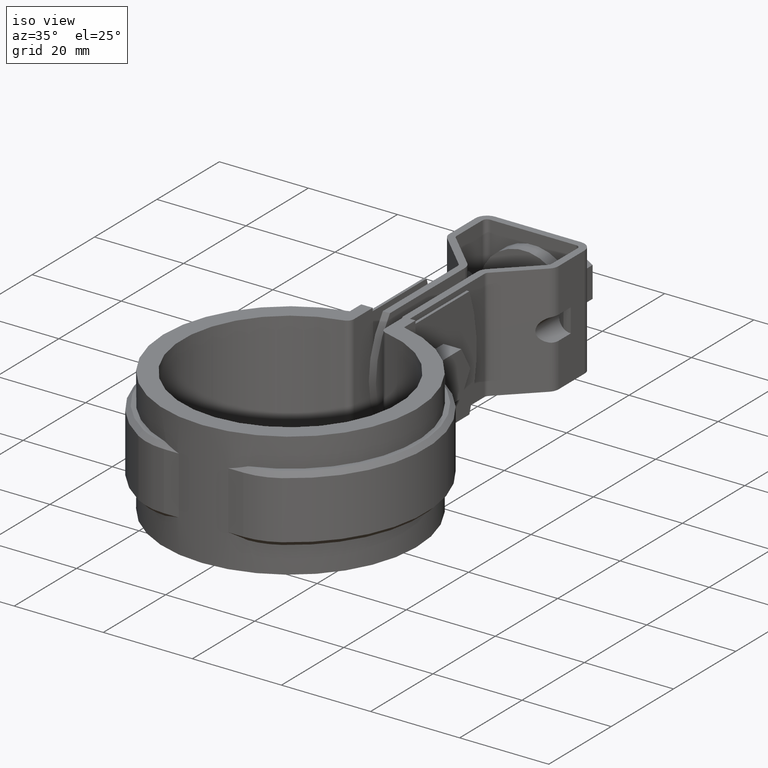
[diagram: clean part render]
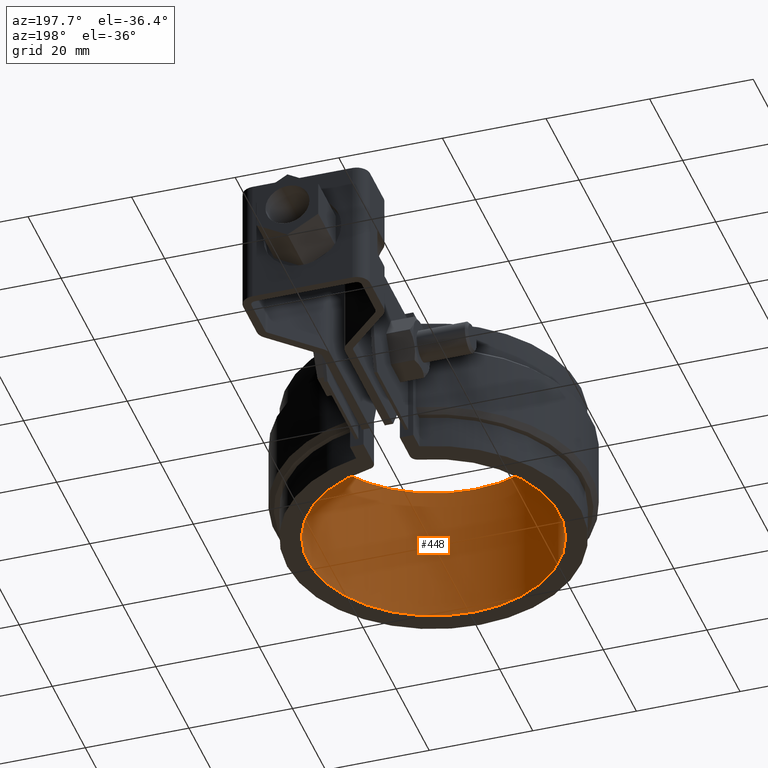
[diagram: tour spotlight — one face highlighted and labeled with its STEP entity id]
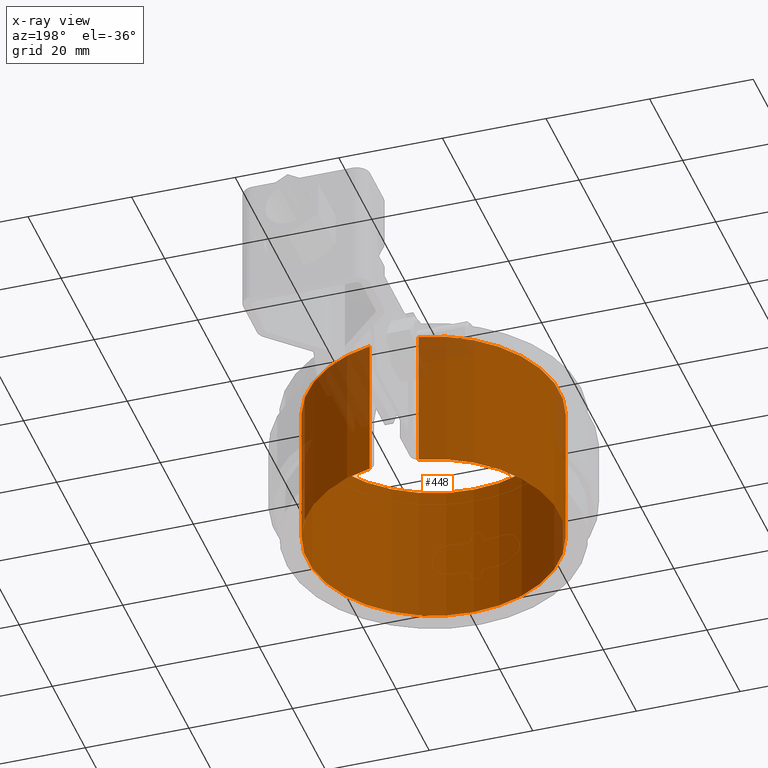
[diagram: x-ray of the same camera — body ghosted, this tour face saturated]
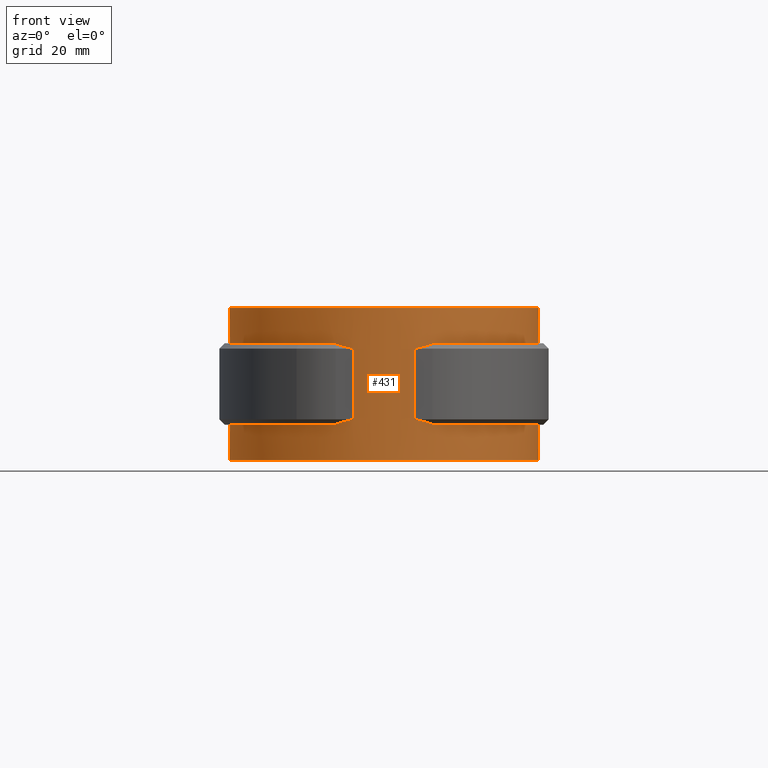
[diagram: tour spotlight — one face highlighted and labeled with its STEP entity id]
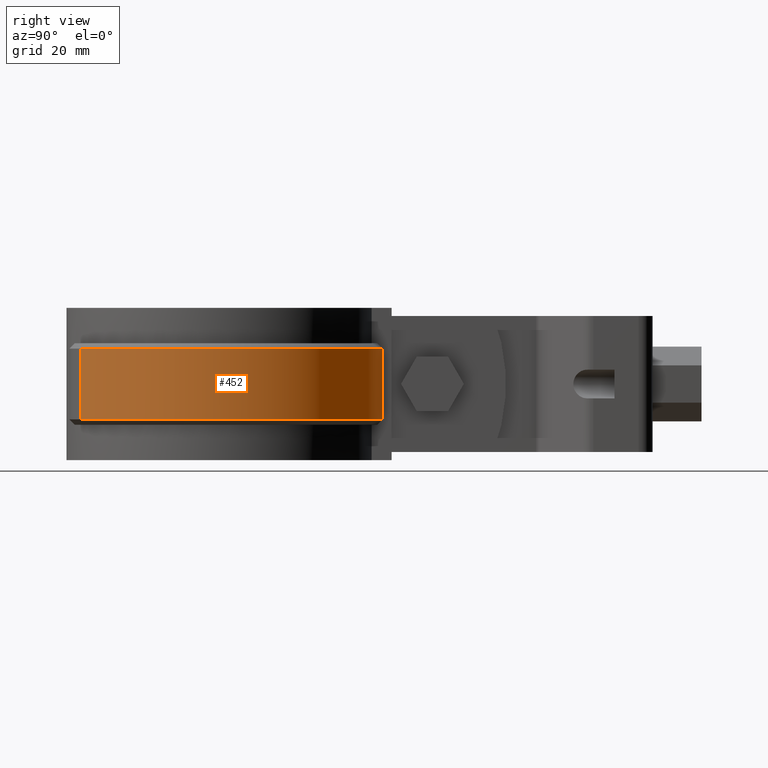
[diagram: tour spotlight — one face highlighted and labeled with its STEP entity id]
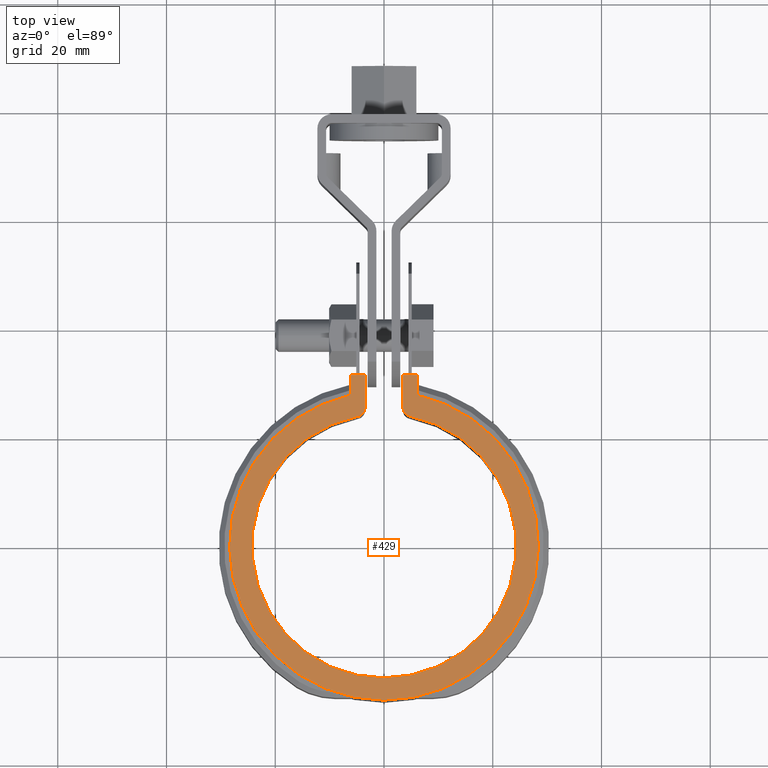
[diagram: tour spotlight — one face highlighted and labeled with its STEP entity id]
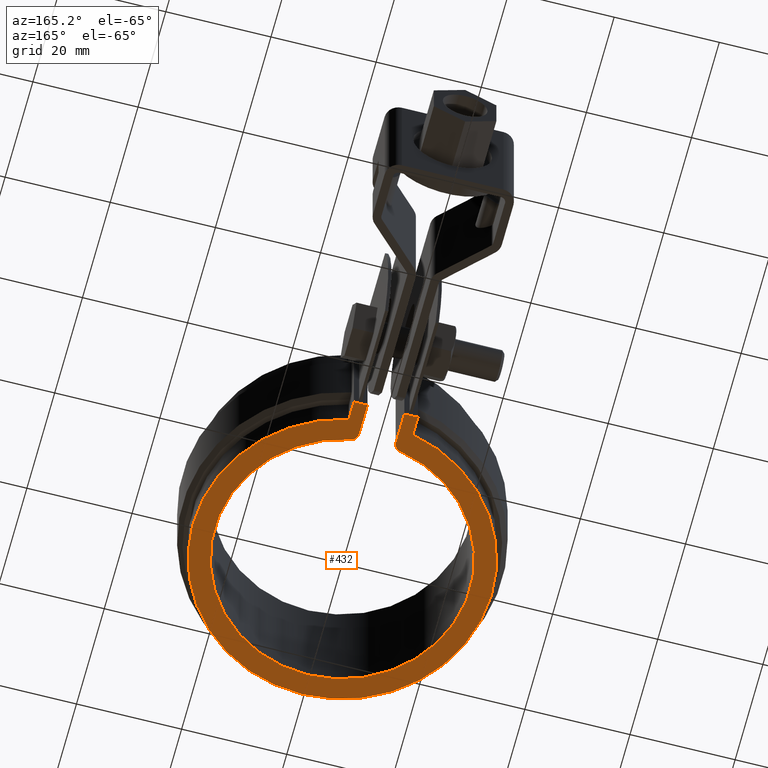
[diagram: tour spotlight — one face highlighted and labeled with its STEP entity id]
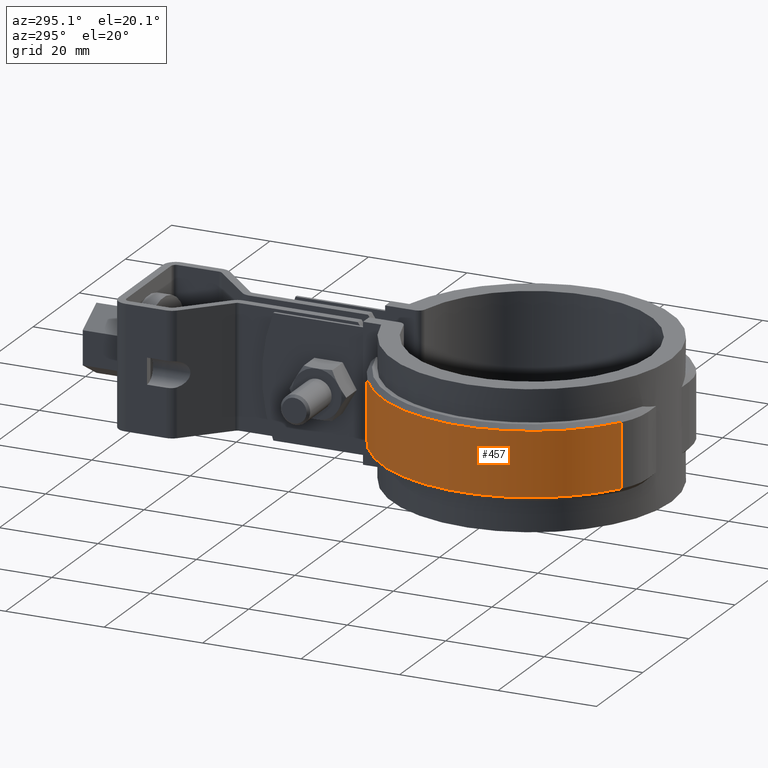
[diagram: tour spotlight — one face highlighted and labeled with its STEP entity id]
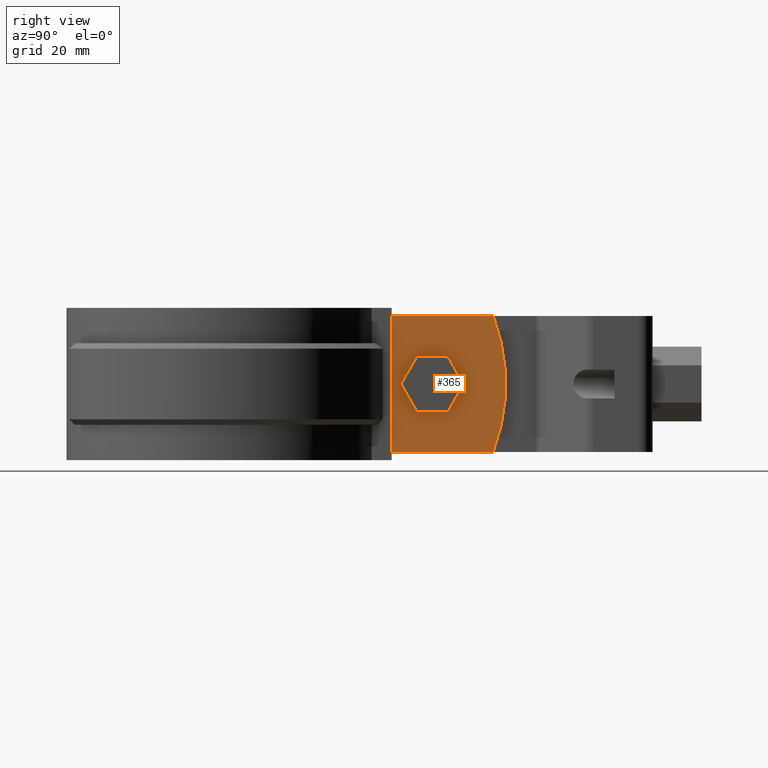
[diagram: tour spotlight — one face highlighted and labeled with its STEP entity id]
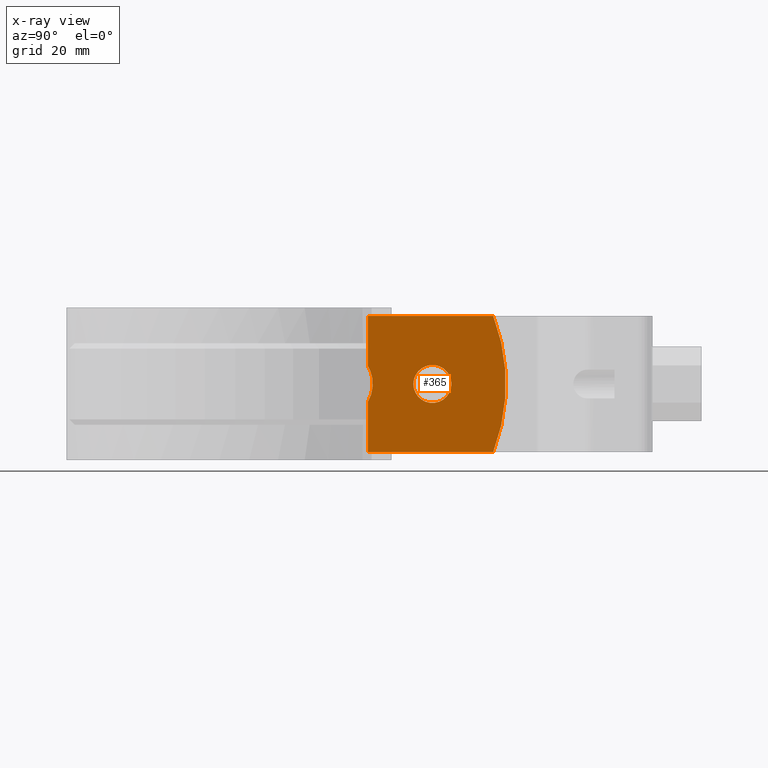
[diagram: x-ray of the same camera — body ghosted, this tour face saturated]
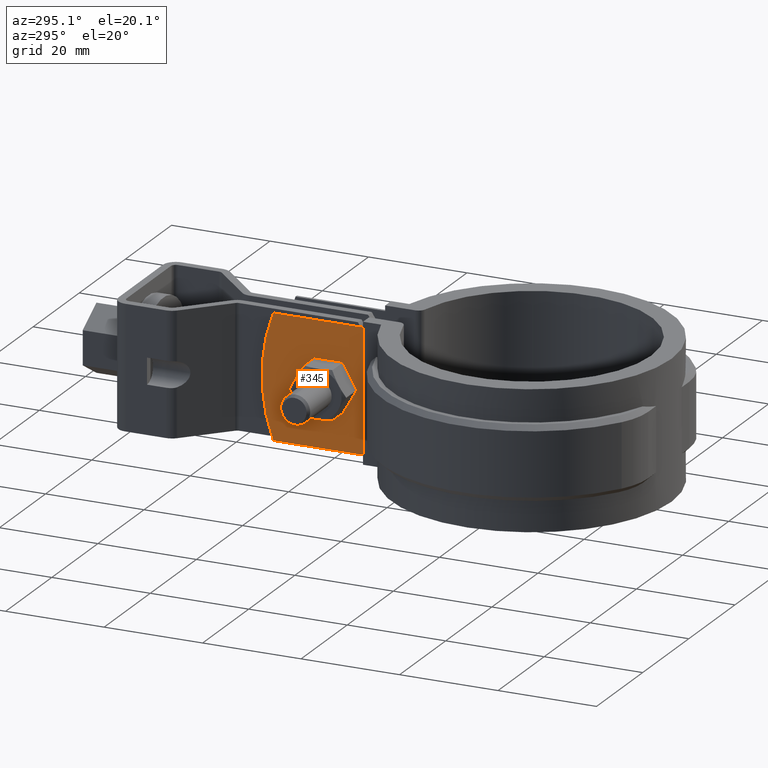
[diagram: tour spotlight — one face highlighted and labeled with its STEP entity id]
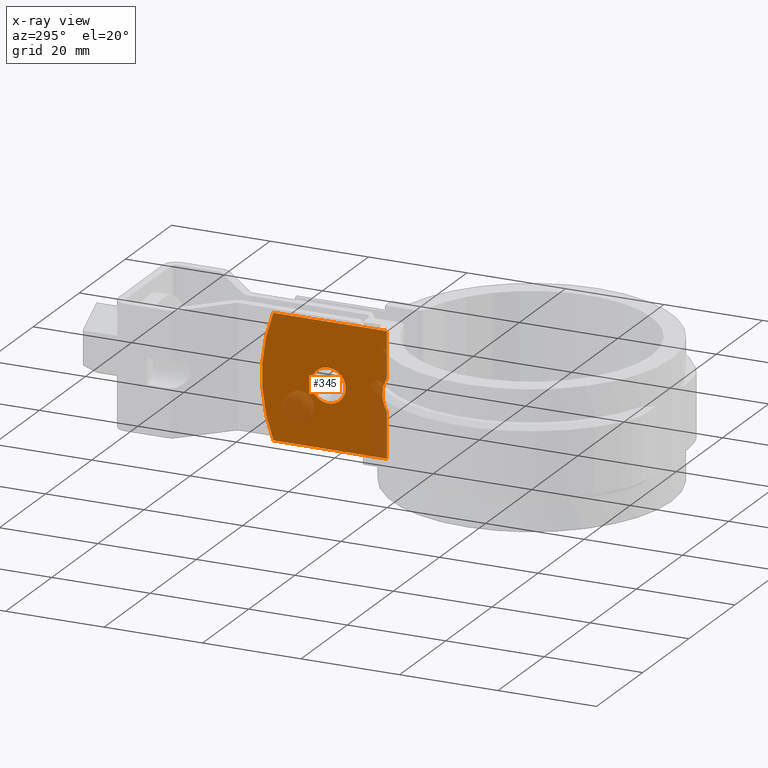
[diagram: x-ray of the same camera — body ghosted, this tour face saturated]
A machine part: a face-by-face anatomy tour. The part has 237 B-rep faces; the first image is the clean iso view, then the 8 largest visible faces are spotlighted one at a time (largest first), each with its STEP entity span.

Face 1 — auxiliary view, entity #448. An x-ray twin of the same camera follows (body ghosted, this face saturated) — the face is partly hidden behind the body. In plain terms, the highlighted cylindrical surface (partial cylindrical patch) has radius 24.3 mm, axis along (0, 0, -1).
Definition (entity closure, byte-faithful):
#448 = ADVANCED_FACE( '', ( #827 ), #828, .F. );
#827 = FACE_OUTER_BOUND( '', #1960, .T. );
#828 = CYLINDRICAL_SURFACE( '', #1961, 24.3000000000000 );
#1960 = EDGE_LOOP( '', ( #4609, #4610, #4611, #4612 ) );
#1961 = AXIS2_PLACEMENT_3D( '', #4613, #4614, #4615 );
#4609 = ORIENTED_EDGE( '', *, *, #5888, .F. );
#4610 = ORIENTED_EDGE( '', *, *, #5916, .T. );
#4611 = ORIENTED_EDGE( '', *, *, #5859, .T. );
#4612 = ORIENTED_EDGE( '', *, *, #5917, .T. );
#4613 = CARTESIAN_POINT( '', ( 0.000000000000000, 0.000000000000000, -96.6314213318892 ) );
#4614 = DIRECTION( '', ( 0.000000000000000, 0.000000000000000, -1.00000000000000 ) );
#4615 = DIRECTION( '', ( -1.00000000000000, 0.000000000000000, 0.000000000000000 ) );
#5859 = EDGE_CURVE( '', #6764, #6762, #6765, .F. );
#5888 = EDGE_CURVE( '', #6815, #6817, #6818, .F. );
#5916 = EDGE_CURVE( '', #6815, #6764, #6858, .T. );
#5917 = EDGE_CURVE( '', #6762, #6817, #6859, .F. );
#6762 = VERTEX_POINT( '', #10327 );
#6764 = VERTEX_POINT( '', #10329 );
#6765 = CIRCLE( '', #10330, 24.3000000000000 );
#6815 = VERTEX_POINT( '', #10409 );
#6817 = VERTEX_POINT( '', #10411 );
#6818 = CIRCLE( '', #10412, 24.3000000000000 );
#6858 = LINE( '', #10470, #10471 );
#6859 = LINE( '', #10472, #10473 );
#10327 = CARTESIAN_POINT( '', ( 4.70930232558140, 23.8393051829594, 1.50000000000000 ) );
#10329 = CARTESIAN_POINT( '', ( -4.70930232558140, 23.8393051829594, 1.50000000000000 ) );
#10330 = AXIS2_PLACEMENT_3D( '', #11458, #11459, #11460 );
#10409 = CARTESIAN_POINT( '', ( -4.70930232558140, 23.8393051829594, -26.5000000000000 ) );
#10411 = CARTESIAN_POINT( '', ( 4.70930232558140, 23.8393051829594, -26.5000000000000 ) );
#10412 = AXIS2_PLACEMENT_3D( '', #11505, #11506, #11507 );
#10470 = CARTESIAN_POINT( '', ( -4.70930232558140, 23.8393051829594, -96.6314213318892 ) );
#10471 = VECTOR( '', #11553, 1000.00000000000 );
#10472 = CARTESIAN_POINT( '', ( 4.70930232558140, 23.8393051829594, -96.6314213318892 ) );
#10473 = VECTOR( '', #11554, 1000.00000000000 );
#11458 = CARTESIAN_POINT( '', ( 0.000000000000000, 0.000000000000000, 1.50000000000000 ) );
#11459 = DIRECTION( '', ( 0.000000000000000, 0.000000000000000, -1.00000000000000 ) );
#11460 = DIRECTION( '', ( -1.00000000000000, 0.000000000000000, 0.000000000000000 ) );
#11505 = CARTESIAN_POINT( '', ( 0.000000000000000, 0.000000000000000, -26.5000000000000 ) );
#11506 = DIRECTION( '', ( 0.000000000000000, 0.000000000000000, -1.00000000000000 ) );
#11507 = DIRECTION( '', ( -1.00000000000000, 0.000000000000000, 0.000000000000000 ) );
#11553 = DIRECTION( '', ( 0.000000000000000, 0.000000000000000, 1.00000000000000 ) );
#11554 = DIRECTION( '', ( 0.000000000000000, 0.000000000000000, 1.00000000000000 ) );

Face 2 — front view, entity #431. In plain terms, the highlighted cylindrical surface (partial cylindrical patch) has radius 28.395 mm, axis along (0, 0, -1).
Definition (entity closure, byte-faithful):
#431 = ADVANCED_FACE( '', ( #792 ), #793, .T. );
#792 = FACE_OUTER_BOUND( '', #1925, .T. );
#793 = CYLINDRICAL_SURFACE( '', #1926, 28.3950000000000 );
#1925 = EDGE_LOOP( '', ( #4464, #4465, #4466, #4467, #4468, #4469, #4470, #4471, #4472, #4473, #4474, #4475, #4476, #4477, #4478, #4479, #4480, #4481, #4482, #4483 ) );
#1926 = AXIS2_PLACEMENT_3D( '', #4484, #4485, #4486 );
#4464 = ORIENTED_EDGE( '', *, *, #5871, .F. );
#4465 = ORIENTED_EDGE( '', *, *, #5872, .T. );
#4466 = ORIENTED_EDGE( '', *, *, #5873, .T. );
#4467 = ORIENTED_EDGE( '', *, *, #5874, .F. );
#4468 = ORIENTED_EDGE( '', *, *, #5875, .T. );
#4469 = ORIENTED_EDGE( '', *, *, #5876, .T. );
#4470 = ORIENTED_EDGE( '', *, *, #5877, .T. );
#4471 = ORIENTED_EDGE( '', *, *, #5848, .F. );
#4472 = ORIENTED_EDGE( '', *, *, #5878, .T. );
#4473 = ORIENTED_EDGE( '', *, *, #5870, .T. );
#4474 = ORIENTED_EDGE( '', *, *, #5879, .F. );
#4475 = ORIENTED_EDGE( '', *, *, #5880, .T. );
#4476 = ORIENTED_EDGE( '', *, *, #5881, .T. );
#4477 = ORIENTED_EDGE( '', *, *, #5882, .T. );
#4478 = ORIENTED_EDGE( '', *, *, #5883, .T. );
#4479 = ORIENTED_EDGE( '', *, *, #5884, .T. );
#4480 = ORIENTED_EDGE( '', *, *, #5885, .T. );
#4481 = ORIENTED_EDGE( '', *, *, #5864, .T. );
#4482 = ORIENTED_EDGE( '', *, *, #5855, .F. );
#4483 = ORIENTED_EDGE( '', *, *, #5854, .F. );
#4484 = CARTESIAN_POINT( '', ( -4.33680868994202E-015, 0.000000000000000, -26.5000000000000 ) );
#4485 = DIRECTION( '', ( 0.000000000000000, 0.000000000000000, -1.00000000000000 ) );
#4486 = DIRECTION( '', ( -1.00000000000000, 6.50521303491303E-017, 0.000000000000000 ) );
#5848 = EDGE_CURVE( '', #6742, #6744, #6745, .T. );
#5854 = EDGE_CURVE( '', #6754, #6740, #6756, .T. );
#5855 = EDGE_CURVE( '', #6740, #6757, #6758, .T. );
#5864 = EDGE_CURVE( '', #6773, #6757, #6774, .T. );
#5870 = EDGE_CURVE( '', #6769, #6783, #6785, .T. );
#5871 = EDGE_CURVE( '', #6786, #6754, #6787, .T. );
#5872 = EDGE_CURVE( '', #6786, #6788, #6789, .F. );
#5873 = EDGE_CURVE( '', #6788, #6790, #6791, .T. );
#5874 = EDGE_CURVE( '', #6792, #6790, #6793, .T. );
#5875 = EDGE_CURVE( '', #6792, #6794, #6795, .F. );
#5876 = EDGE_CURVE( '', #6794, #6796, #6797, .T. );
#5877 = EDGE_CURVE( '', #6796, #6744, #6798, .T. );
#5878 = EDGE_CURVE( '', #6742, #6769, #6799, .T. );
#5879 = EDGE_CURVE( '', #6800, #6783, #6801, .T. );
#5880 = EDGE_CURVE( '', #6800, #6802, #6803, .F. );
#5881 = EDGE_CURVE( '', #6802, #6804, #6805, .F. );
#5882 = EDGE_CURVE( '', #6804, #6806, #6807, .T. );
#5883 = EDGE_CURVE( '', #6806, #6808, #6809, .T. );
#5884 = EDGE_CURVE( '', #6808, #6810, #6811, .T. );
#5885 = EDGE_CURVE( '', #6810, #6773, #6812, .T. );
#6740 = VERTEX_POINT( '', #10290 );
#6742 = VERTEX_POINT( '', #10293 );
#6744 = VERTEX_POINT( '', #10296 );
#6745 = LINE( '', #10297, #10298 );
#6754 = VERTEX_POINT( '', #10315 );
#6756 = LINE( '', #10318, #10319 );
#6757 = VERTEX_POINT( '', #10320 );
#6758 = CIRCLE( '', #10321, 28.3950000000000 );
#6769 = VERTEX_POINT( '', #10335 );
#6773 = VERTEX_POINT( '', #10341 );
#6774 = LINE( '', #10342, #10343 );
#6783 = VERTEX_POINT( '', #10360 );
#6785 = LINE( '', #10363, #10364 );
#6786 = VERTEX_POINT( '', #10365 );
#6787 = CIRCLE( '', #10366, 28.3950000000000 );
#6788 = VERTEX_POINT( '', #10367 );
#6789 = B_SPLINE_CURVE_WITH_KNOTS( '', 3, ( #10368, #10369, #10370, #10371 ), .UNSPECIFIED., .F., .F., ( 4, 4 ), ( 0.00706671622431383, 0.00746585166887138 ), .UNSPECIFIED. );
#6790 = VERTEX_POINT( '', #10372 );
#6791 = ELLIPSE( '', #10373, 40.1565941035840, 28.3950000000000 );
#6792 = VERTEX_POINT( '', #10374 );
#6793 = LINE( '', #10375, #10376 );
#6794 = VERTEX_POINT( '', #10377 );
#6795 = ELLIPSE( '', #10378, 40.1565941035840, 28.3950000000000 );
#6796 = VERTEX_POINT( '', #10379 );
#6797 = B_SPLINE_CURVE_WITH_KNOTS( '', 3, ( #10380, #10381, #10382, #10383 ), .UNSPECIFIED., .F., .F., ( 4, 4 ), ( 0.00706671622431389, 0.00746585166887139 ), .UNSPECIFIED. );
#6798 = CIRCLE( '', #10384, 28.3950000000000 );
#6799 = CIRCLE( '', #10385, 28.3950000000000 );
#6800 = VERTEX_POINT( '', #10386 );
#6801 = CIRCLE( '', #10387, 28.3950000000000 );
#6802 = VERTEX_POINT( '', #10388 );
#6803 = B_SPLINE_CURVE_WITH_KNOTS( '', 3, ( #10389, #10390, #10391, #10392 ), .UNSPECIFIED., .F., .F., ( 4, 4 ), ( 0.00706671622431389, 0.00746585166887139 ), .UNSPECIFIED. );
#6804 = VERTEX_POINT( '', #10393 );
#6805 = ELLIPSE( '', #10394, 40.1565941035840, 28.3950000000000 );
#6806 = VERTEX_POINT( '', #10395 );
#6807 = LINE( '', #10396, #10397 );
#6808 = VERTEX_POINT( '', #10398 );
#6809 = ELLIPSE( '', #10399, 40.1565941035840, 28.3950000000000 );
#6810 = VERTEX_POINT( '', #10400 );
#6811 = B_SPLINE_CURVE_WITH_KNOTS( '', 3, ( #10401, #10402, #10403, #10404 ), .UNSPECIFIED., .F., .F., ( 4, 4 ), ( 0.00706671622431387, 0.00746585166887139 ), .UNSPECIFIED. );
#6812 = CIRCLE( '', #10405, 28.3950000000000 );
#10290 = CARTESIAN_POINT( '', ( -6.10000000000000, 27.7320396833698, 1.50000000000000 ) );
#10293 = CARTESIAN_POINT( '', ( -6.10000000000000, 27.7320396833698, -26.5000000000000 ) );
#10296 = CARTESIAN_POINT( '', ( -6.10000000000001, 27.7320396833699, -20.0000000000000 ) );
#10297 = CARTESIAN_POINT( '', ( -6.10000000000000, 27.7320396833698, -26.5000000000000 ) );
#10298 = VECTOR( '', #11445, 1000.00000000000 );
#10315 = CARTESIAN_POINT( '', ( -6.10000000000001, 27.7320396833699, -5.00000000000000 ) );
#10318 = CARTESIAN_POINT( '', ( -6.10000000000000, 27.7320396833698, -26.5000000000000 ) );
#10319 = VECTOR( '', #11449, 1000.00000000000 );
#10320 = CARTESIAN_POINT( '', ( 6.10000000000000, 27.7320396833698, 1.50000000000000 ) );
#10321 = AXIS2_PLACEMENT_3D( '', #11450, #11451, #11452 );
#10335 = CARTESIAN_POINT( '', ( 6.10000000000000, 27.7320396833698, -26.5000000000000 ) );
#10341 = CARTESIAN_POINT( '', ( 6.10000000000000, 27.7320396833699, -5.00000000000000 ) );
#10342 = CARTESIAN_POINT( '', ( 6.10000000000000, 27.7320396833698, -26.5000000000000 ) );
#10343 = VECTOR( '', #11467, 1000.00000000000 );
#10360 = CARTESIAN_POINT( '', ( 6.10000000000000, 27.7320396833698, -20.0000000000000 ) );
#10363 = CARTESIAN_POINT( '', ( 6.10000000000000, 27.7320396833698, -26.5000000000000 ) );
#10364 = VECTOR( '', #11471, 1000.00000000000 );
#10365 = CARTESIAN_POINT( '', ( -9.25408003531870, -26.8447020415559, -5.00000000000000 ) );
#10366 = AXIS2_PLACEMENT_3D( '', #11472, #11473, #11474 );
#10367 = CARTESIAN_POINT( '', ( -8.88873022427838, -26.9678790415561, -5.11787904155609 ) );
#10368 = CARTESIAN_POINT( '', ( -8.88873022427837, -26.9678790415561, -5.11787904155608 ) );
#10369 = CARTESIAN_POINT( '', ( -9.01038261567006, -26.9277818842471, -5.07778188424709 ) );
#10370 = CARTESIAN_POINT( '', ( -9.13216194667498, -26.8867304368912, -5.03847558459403 ) );
#10371 = CARTESIAN_POINT( '', ( -9.25408003531869, -26.8447020415559, -4.99999999999999 ) );
#10372 = CARTESIAN_POINT( '', ( -5.53656256173450, -27.8500000000000, -6.00000000000000 ) );
#10373 = AXIS2_PLACEMENT_3D( '', #11475, #11476, #11477 );
#10374 = CARTESIAN_POINT( '', ( -5.53656256173450, -27.8500000000000, -19.0000000000000 ) );
#10375 = CARTESIAN_POINT( '', ( -5.53656256173450, -27.8500000000000, -20.0000000000000 ) );
#10376 = VECTOR( '', #11478, 1000.00000000000 );
#10377 = CARTESIAN_POINT( '', ( -8.88873022427840, -26.9678790415561, -19.8821209584439 ) );
#10378 = AXIS2_PLACEMENT_3D( '', #11479, #11480, #11481 );
#10379 = CARTESIAN_POINT( '', ( -9.25408003531866, -26.8447020415559, -20.0000000000000 ) );
#10380 = CARTESIAN_POINT( '', ( -8.88873022427839, -26.9678790415561, -19.8821209584439 ) );
#10381 = CARTESIAN_POINT( '', ( -9.01038261567007, -26.9277818842471, -19.9222181157529 ) );
#10382 = CARTESIAN_POINT( '', ( -9.13216194667496, -26.8867304368912, -19.9615244154060 ) );
#10383 = CARTESIAN_POINT( '', ( -9.25408003531865, -26.8447020415559, -20.0000000000000 ) );
#10384 = AXIS2_PLACEMENT_3D( '', #11482, #11483, #11484 );
#10385 = AXIS2_PLACEMENT_3D( '', #11485, #11486, #11487 );
#10386 = CARTESIAN_POINT( '', ( 9.25408003531866, -26.8447020415559, -20.0000000000000 ) );
#10387 = AXIS2_PLACEMENT_3D( '', #11488, #11489, #11490 );
#10388 = CARTESIAN_POINT( '', ( 8.88873022427839, -26.9678790415561, -19.8821209584439 ) );
#10389 = CARTESIAN_POINT( '', ( 8.88873022427839, -26.9678790415561, -19.8821209584439 ) );
#10390 = CARTESIAN_POINT( '', ( 9.01038261567006, -26.9277818842471, -19.9222181157529 ) );
#10391 = CARTESIAN_POINT( '', ( 9.13216194667496, -26.8867304368912, -19.9615244154060 ) );
#10392 = CARTESIAN_POINT( '', ( 9.25408003531865, -26.8447020415559, -20.0000000000000 ) );
#10393 = CARTESIAN_POINT( '', ( 5.53656256173448, -27.8500000000000, -19.0000000000000 ) );
#10394 = AXIS2_PLACEMENT_3D( '', #11491, #11492, #11493 );
#10395 = CARTESIAN_POINT( '', ( 5.53656256173448, -27.8500000000000, -6.00000000000000 ) );
#10396 = CARTESIAN_POINT( '', ( 5.53656256173448, -27.8500000000000, -20.0000000000000 ) );
#10397 = VECTOR( '', #11494, 1000.00000000000 );
#10398 = CARTESIAN_POINT( '', ( 8.88873022427838, -26.9678790415561, -5.11787904155608 ) );
#10399 = AXIS2_PLACEMENT_3D( '', #11495, #11496, #11497 );
#10400 = CARTESIAN_POINT( '', ( 9.25408003531866, -26.8447020415559, -5.00000000000000 ) );
#10401 = CARTESIAN_POINT( '', ( 8.88873022427837, -26.9678790415561, -5.11787904155608 ) );
#10402 = CARTESIAN_POINT( '', ( 9.01038261567005, -26.9277818842471, -5.07778188424709 ) );
#10403 = CARTESIAN_POINT( '', ( 9.13216194667495, -26.8867304368912, -5.03847558459404 ) );
#10404 = CARTESIAN_POINT( '', ( 9.25408003531865, -26.8447020415559, -4.99999999999999 ) );
#10405 = AXIS2_PLACEMENT_3D( '', #11498, #11499, #11500 );
#11445 = DIRECTION( '', ( 0.000000000000000, 0.000000000000000, 1.00000000000000 ) );
#11449 = DIRECTION( '', ( 0.000000000000000, 0.000000000000000, 1.00000000000000 ) );
#11450 = CARTESIAN_POINT( '', ( -4.33680868994202E-015, 0.000000000000000, 1.50000000000000 ) );
#11451 = DIRECTION( '', ( 0.000000000000000, 0.000000000000000, 1.00000000000000 ) );
#11452 = DIRECTION( '', ( 1.00000000000000, -6.50521303491303E-017, 0.000000000000000 ) );
#11467 = DIRECTION( '', ( 0.000000000000000, 0.000000000000000, 1.00000000000000 ) );
#11471 = DIRECTION( '', ( 0.000000000000000, 0.000000000000000, 1.00000000000000 ) );
#11472 = CARTESIAN_POINT( '', ( -8.67361737988404E-016, -3.46944695195361E-015, -5.00000000000000 ) );
#11473 = DIRECTION( '', ( 0.000000000000000, 0.000000000000000, -1.00000000000000 ) );
#11474 = DIRECTION( '', ( 1.00000000000000, 5.55111512312578E-017, 0.000000000000000 ) );
#11475 = CARTESIAN_POINT( '', ( -4.33680868994202E-015, 0.000000000000000, 21.8500000000000 ) );
#11476 = DIRECTION( '', ( 0.000000000000000, -0.707106781186548, 0.707106781186547 ) );
#11477 = DIRECTION( '', ( 0.000000000000000, 0.707106781186547, 0.707106781186548 ) );
#11478 = DIRECTION( '', ( 0.000000000000000, 0.000000000000000, 1.00000000000000 ) );
#11479 = CARTESIAN_POINT( '', ( -4.33680868994202E-015, 0.000000000000000, -46.8500000000000 ) );
#11480 = DIRECTION( '', ( 0.000000000000000, 0.707106781186548, 0.707106781186548 ) );
#11481 = DIRECTION( '', ( 0.000000000000000, -0.707106781186548, 0.707106781186548 ) );
#11482 = CARTESIAN_POINT( '', ( -8.67361737988404E-016, -3.46944695195361E-015, -20.0000000000000 ) );
#11483 = DIRECTION( '', ( 0.000000000000000, 0.000000000000000, -1.00000000000000 ) );
#11484 = DIRECTION( '', ( 1.00000000000000, 5.55111512312578E-017, 0.000000000000000 ) );
#11485 = CARTESIAN_POINT( '', ( -4.33680868994202E-015, 0.000000000000000, -26.5000000000000 ) );
#11486 = DIRECTION( '', ( 0.000000000000000, 0.000000000000000, 1.00000000000000 ) );
#11487 = DIRECTION( '', ( 1.00000000000000, -6.50521303491303E-017, 0.000000000000000 ) );
#11488 = CARTESIAN_POINT( '', ( -8.67361737988404E-016, -3.46944695195361E-015, -20.0000000000000 ) );
#11489 = DIRECTION( '', ( 0.000000000000000, 0.000000000000000, 1.00000000000000 ) );
#11490 = DIRECTION( '', ( 1.00000000000000, 5.55111512312578E-017, 0.000000000000000 ) );
#11491 = CARTESIAN_POINT( '', ( -4.33680868994202E-015, 0.000000000000000, -46.8500000000000 ) );
#11492 = DIRECTION( '', ( 0.000000000000000, 0.707106781186548, 0.707106781186548 ) );
#11493 = DIRECTION( '', ( 0.000000000000000, -0.707106781186548, 0.707106781186548 ) );
#11494 = DIRECTION( '', ( 0.000000000000000, 0.000000000000000, 1.00000000000000 ) );
#11495 = CARTESIAN_POINT( '', ( -4.33680868994202E-015, 0.000000000000000, 21.8500000000000 ) );
#11496 = DIRECTION( '', ( 0.000000000000000, -0.707106781186548, 0.707106781186547 ) );
#11497 = DIRECTION( '', ( 0.000000000000000, 0.707106781186547, 0.707106781186548 ) );
#11498 = CARTESIAN_POINT( '', ( -8.67361737988404E-016, -3.46944695195361E-015, -5.00000000000000 ) );
#11499 = DIRECTION( '', ( 0.000000000000000, 0.000000000000000, 1.00000000000000 ) );
#11500 = DIRECTION( '', ( 1.00000000000000, 5.55111512312578E-017, 0.000000000000000 ) );

Face 3 — right view, entity #452. In plain terms, the highlighted cylindrical surface (partial cylindrical patch) has radius 30.395 mm, axis along (0, 0, -1).
Definition (entity closure, byte-faithful):
#452 = ADVANCED_FACE( '', ( #835 ), #836, .T. );
#835 = FACE_OUTER_BOUND( '', #1968, .T. );
#836 = CYLINDRICAL_SURFACE( '', #1969, 30.3950000000000 );
#1968 = EDGE_LOOP( '', ( #4637, #4638, #4639, #4640 ) );
#1969 = AXIS2_PLACEMENT_3D( '', #4641, #4642, #4643 );
#4637 = ORIENTED_EDGE( '', *, *, #5867, .T. );
#4638 = ORIENTED_EDGE( '', *, *, #5920, .T. );
#4639 = ORIENTED_EDGE( '', *, *, #5892, .F. );
#4640 = ORIENTED_EDGE( '', *, *, #5919, .T. );
#4641 = CARTESIAN_POINT( '', ( -8.67361737988404E-016, -3.46944695195361E-015, -20.0000000000000 ) );
#4642 = DIRECTION( '', ( 0.000000000000000, 0.000000000000000, -1.00000000000000 ) );
#4643 = DIRECTION( '', ( 0.194983714095246, 0.980806480014087, 0.000000000000000 ) );
#5867 = EDGE_CURVE( '', #6779, #6777, #6780, .T. );
#5892 = EDGE_CURVE( '', #6822, #6823, #6824, .T. );
#5919 = EDGE_CURVE( '', #6822, #6779, #6861, .T. );
#5920 = EDGE_CURVE( '', #6777, #6823, #6862, .F. );
#6777 = VERTEX_POINT( '', #10347 );
#6779 = VERTEX_POINT( '', #10352 );
#6780 = LINE( '', #10353, #10354 );
#6822 = VERTEX_POINT( '', #10418 );
#6823 = VERTEX_POINT( '', #10419 );
#6824 = LINE( '', #10420, #10421 );
#6861 = CIRCLE( '', #10475, 30.3950000000000 );
#6862 = CIRCLE( '', #10476, 30.3950000000000 );
#10347 = CARTESIAN_POINT( '', ( 6.10000000000001, 29.7766019720183, -6.00000000000000 ) );
#10352 = CARTESIAN_POINT( '', ( 6.10000000000001, 29.7766019720183, -19.0000000000000 ) );
#10353 = CARTESIAN_POINT( '', ( 6.10000000000001, 29.7766019720183, -20.0000000000000 ) );
#10354 = VECTOR( '', #11469, 1000.00000000000 );
#10418 = CARTESIAN_POINT( '', ( 16.0865111739769, -25.7891485561179, -19.0000000000000 ) );
#10419 = CARTESIAN_POINT( '', ( 16.0865111739769, -25.7891485561179, -6.00000000000000 ) );
#10420 = CARTESIAN_POINT( '', ( 16.0865111739769, -25.7891485561179, -20.0000000000000 ) );
#10421 = VECTOR( '', #11513, 1000.00000000000 );
#10475 = AXIS2_PLACEMENT_3D( '', #11558, #11559, #11560 );
#10476 = AXIS2_PLACEMENT_3D( '', #11561, #11562, #11563 );
#11469 = DIRECTION( '', ( 0.000000000000000, 0.000000000000000, 1.00000000000000 ) );
#11513 = DIRECTION( '', ( 0.000000000000000, 0.000000000000000, 1.00000000000000 ) );
#11558 = CARTESIAN_POINT( '', ( -8.67361737988404E-016, -3.46944695195361E-015, -19.0000000000000 ) );
#11559 = DIRECTION( '', ( 0.000000000000000, 0.000000000000000, 1.00000000000000 ) );
#11560 = DIRECTION( '', ( 1.00000000000000, 0.000000000000000, 0.000000000000000 ) );
#11561 = CARTESIAN_POINT( '', ( -8.67361737988404E-016, -3.46944695195361E-015, -6.00000000000000 ) );
#11562 = DIRECTION( '', ( 0.000000000000000, 0.000000000000000, 1.00000000000000 ) );
#11563 = DIRECTION( '', ( 1.00000000000000, 0.000000000000000, 0.000000000000000 ) );

Face 4 — top view, entity #429. In plain terms, the highlighted planar face has unit normal (0, 0, -1).
Definition (entity closure, byte-faithful):
#429 = ADVANCED_FACE( '', ( #788 ), #789, .F. );
#788 = FACE_OUTER_BOUND( '', #1921, .T. );
#789 = PLANE( '', #1922 );
#1921 = EDGE_LOOP( '', ( #4438, #4439, #4440, #4441, #4442, #4443, #4444, #4445, #4446, #4447 ) );
#1922 = AXIS2_PLACEMENT_3D( '', #4448, #4449, #4450 );
#4438 = ORIENTED_EDGE( '', *, *, #5671, .F. );
#4439 = ORIENTED_EDGE( '', *, *, #5846, .T. );
#4440 = ORIENTED_EDGE( '', *, *, #5855, .T. );
#4441 = ORIENTED_EDGE( '', *, *, #5856, .T. );
#4442 = ORIENTED_EDGE( '', *, *, #5857, .F. );
#4443 = ORIENTED_EDGE( '', *, *, #5664, .T. );
#4444 = ORIENTED_EDGE( '', *, *, #5858, .T. );
#4445 = ORIENTED_EDGE( '', *, *, #5859, .F. );
#4446 = ORIENTED_EDGE( '', *, *, #5860, .T. );
#4447 = ORIENTED_EDGE( '', *, *, #5861, .T. );
#4448 = CARTESIAN_POINT( '', ( -6.50000000000000, 27.0294284068310, 1.50000000000000 ) );
#4449 = DIRECTION( '', ( 0.000000000000000, 0.000000000000000, -1.00000000000000 ) );
#4450 = DIRECTION( '', ( 1.00000000000000, -7.52042071609464E-017, 0.000000000000000 ) );
#5664 = EDGE_CURVE( '', #6436, #6437, #6438, .T. );
#5671 = EDGE_CURVE( '', #6449, #6445, #6451, .T. );
#5846 = EDGE_CURVE( '', #6449, #6740, #6741, .T. );
#5855 = EDGE_CURVE( '', #6740, #6757, #6758, .T. );
#5856 = EDGE_CURVE( '', #6757, #6759, #6760, .T. );
#5857 = EDGE_CURVE( '', #6436, #6759, #6761, .T. );
#5858 = EDGE_CURVE( '', #6437, #6762, #6763, .F. );
#5859 = EDGE_CURVE( '', #6764, #6762, #6765, .F. );
#5860 = EDGE_CURVE( '', #6764, #6766, #6767, .F. );
#5861 = EDGE_CURVE( '', #6766, #6445, #6768, .T. );
#6436 = VERTEX_POINT( '', #8502 );
#6437 = VERTEX_POINT( '', #8503 );
#6438 = LINE( '', #8504, #8505 );
#6445 = VERTEX_POINT( '', #8515 );
#6449 = VERTEX_POINT( '', #8521 );
#6451 = LINE( '', #8524, #8525 );
#6740 = VERTEX_POINT( '', #10290 );
#6741 = LINE( '', #10291, #10292 );
#6757 = VERTEX_POINT( '', #10320 );
#6758 = CIRCLE( '', #10321, 28.3950000000000 );
#6759 = VERTEX_POINT( '', #10322 );
#6760 = LINE( '', #10323, #10324 );
#6761 = LINE( '', #10325, #10326 );
#6762 = VERTEX_POINT( '', #10327 );
#6763 = CIRCLE( '', #10328, 1.50000000000000 );
#6764 = VERTEX_POINT( '', #10329 );
#6765 = CIRCLE( '', #10330, 24.3000000000000 );
#6766 = VERTEX_POINT( '', #10331 );
#6767 = CIRCLE( '', #10332, 1.50000000000000 );
#6768 = LINE( '', #10333, #10334 );
#8502 = CARTESIAN_POINT( '', ( 3.50000000000001, 31.4045271556441, 1.50000000000000 ) );
#8503 = CARTESIAN_POINT( '', ( 3.50000000000000, 25.3108672312902, 1.50000000000000 ) );
#8504 = CARTESIAN_POINT( '', ( 3.50000000000000, 31.8400000000000, 1.50000000000000 ) );
#8505 = VECTOR( '', #11304, 1000.00000000000 );
#8515 = CARTESIAN_POINT( '', ( -3.50000000000000, 31.4045271556441, 1.50000000000000 ) );
#8521 = CARTESIAN_POINT( '', ( -6.10000000000000, 31.4045271556441, 1.50000000000000 ) );
#8524 = CARTESIAN_POINT( '', ( -6.50000000000000, 31.4045271556441, 1.50000000000000 ) );
#8525 = VECTOR( '', #11311, 1000.00000000000 );
#10290 = CARTESIAN_POINT( '', ( -6.10000000000000, 27.7320396833698, 1.50000000000000 ) );
#10291 = CARTESIAN_POINT( '', ( -6.10000000000000, 31.8400000000000, 1.50000000000000 ) );
#10292 = VECTOR( '', #11443, 1000.00000000000 );
#10320 = CARTESIAN_POINT( '', ( 6.10000000000000, 27.7320396833698, 1.50000000000000 ) );
#10321 = AXIS2_PLACEMENT_3D( '', #11450, #11451, #11452 );
#10322 = CARTESIAN_POINT( '', ( 6.10000000000000, 31.4045271556441, 1.50000000000000 ) );
#10323 = CARTESIAN_POINT( '', ( 6.10000000000000, 27.7320396833699, 1.50000000000000 ) );
#10324 = VECTOR( '', #11453, 1000.00000000000 );
#10325 = CARTESIAN_POINT( '', ( -6.50000000000000, 31.4045271556441, 1.50000000000000 ) );
#10326 = VECTOR( '', #11454, 1000.00000000000 );
#10327 = CARTESIAN_POINT( '', ( 4.70930232558140, 23.8393051829594, 1.50000000000000 ) );
#10328 = AXIS2_PLACEMENT_3D( '', #11455, #11456, #11457 );
#10329 = CARTESIAN_POINT( '', ( -4.70930232558140, 23.8393051829594, 1.50000000000000 ) );
#10330 = AXIS2_PLACEMENT_3D( '', #11458, #11459, #11460 );
#10331 = CARTESIAN_POINT( '', ( -3.50000000000000, 25.3108672312902, 1.50000000000000 ) );
#10332 = AXIS2_PLACEMENT_3D( '', #11461, #11462, #11463 );
#10333 = CARTESIAN_POINT( '', ( -3.50000000000000, 24.0415686884196, 1.50000000000000 ) );
#10334 = VECTOR( '', #11464, 1000.00000000000 );
#11304 = DIRECTION( '', ( -6.07153216591882E-017, -1.00000000000000, 0.000000000000000 ) );
#11311 = DIRECTION( '', ( 1.00000000000000, 0.000000000000000, 0.000000000000000 ) );
#11443 = DIRECTION( '', ( -6.50521303491303E-017, -1.00000000000000, 0.000000000000000 ) );
#11450 = CARTESIAN_POINT( '', ( -4.33680868994202E-015, 0.000000000000000, 1.50000000000000 ) );
#11451 = DIRECTION( '', ( 0.000000000000000, 0.000000000000000, 1.00000000000000 ) );
#11452 = DIRECTION( '', ( 1.00000000000000, -6.50521303491303E-017, 0.000000000000000 ) );
#11453 = DIRECTION( '', ( 6.50521303491303E-017, 1.00000000000000, 0.000000000000000 ) );
#11454 = DIRECTION( '', ( 1.00000000000000, 0.000000000000000, 0.000000000000000 ) );
#11455 = CARTESIAN_POINT( '', ( 5.00000000000000, 25.3108672312902, 1.50000000000000 ) );
#11456 = DIRECTION( '', ( 0.000000000000000, 0.000000000000000, -1.00000000000000 ) );
#11457 = DIRECTION( '', ( -1.00000000000000, 0.000000000000000, 0.000000000000000 ) );
#11458 = CARTESIAN_POINT( '', ( 0.000000000000000, 0.000000000000000, 1.50000000000000 ) );
#11459 = DIRECTION( '', ( 0.000000000000000, 0.000000000000000, -1.00000000000000 ) );
#11460 = DIRECTION( '', ( -1.00000000000000, 0.000000000000000, 0.000000000000000 ) );
#11461 = CARTESIAN_POINT( '', ( -5.00000000000000, 25.3108672312902, 1.50000000000000 ) );
#11462 = DIRECTION( '', ( 0.000000000000000, 0.000000000000000, -1.00000000000000 ) );
#11463 = DIRECTION( '', ( -1.00000000000000, 0.000000000000000, 0.000000000000000 ) );
#11464 = DIRECTION( '', ( 6.07153216591882E-017, 1.00000000000000, 0.000000000000000 ) );

Face 5 — auxiliary view, entity #432. In plain terms, the highlighted planar face has unit normal (0, 0, -1).
Definition (entity closure, byte-faithful):
#432 = ADVANCED_FACE( '', ( #794 ), #795, .T. );
#794 = FACE_OUTER_BOUND( '', #1927, .T. );
#795 = PLANE( '', #1928 );
#1927 = EDGE_LOOP( '', ( #4487, #4488, #4489, #4490, #4491, #4492, #4493, #4494, #4495, #4496 ) );
#1928 = AXIS2_PLACEMENT_3D( '', #4497, #4498, #4499 );
#4487 = ORIENTED_EDGE( '', *, *, #5847, .F. );
#4488 = ORIENTED_EDGE( '', *, *, #5669, .T. );
#4489 = ORIENTED_EDGE( '', *, *, #5886, .F. );
#4490 = ORIENTED_EDGE( '', *, *, #5887, .T. );
#4491 = ORIENTED_EDGE( '', *, *, #5888, .T. );
#4492 = ORIENTED_EDGE( '', *, *, #5889, .T. );
#4493 = ORIENTED_EDGE( '', *, *, #5666, .F. );
#4494 = ORIENTED_EDGE( '', *, *, #5890, .T. );
#4495 = ORIENTED_EDGE( '', *, *, #5862, .F. );
#4496 = ORIENTED_EDGE( '', *, *, #5878, .F. );
#4497 = CARTESIAN_POINT( '', ( -6.50000000000000, 27.0294284068310, -26.5000000000000 ) );
#4498 = DIRECTION( '', ( 0.000000000000000, 0.000000000000000, -1.00000000000000 ) );
#4499 = DIRECTION( '', ( 1.00000000000000, -7.52042071609464E-017, 0.000000000000000 ) );
#5666 = EDGE_CURVE( '', #6439, #6441, #6442, .T. );
#5669 = EDGE_CURVE( '', #6447, #6444, #6448, .T. );
#5847 = EDGE_CURVE( '', #6447, #6742, #6743, .T. );
#5862 = EDGE_CURVE( '', #6769, #6770, #6771, .T. );
#5878 = EDGE_CURVE( '', #6742, #6769, #6799, .T. );
#5886 = EDGE_CURVE( '', #6813, #6444, #6814, .T. );
#5887 = EDGE_CURVE( '', #6813, #6815, #6816, .T. );
#5888 = EDGE_CURVE( '', #6815, #6817, #6818, .F. );
#5889 = EDGE_CURVE( '', #6817, #6441, #6819, .T. );
#5890 = EDGE_CURVE( '', #6439, #6770, #6820, .T. );
#6439 = VERTEX_POINT( '', #8506 );
#6441 = VERTEX_POINT( '', #8509 );
#6442 = LINE( '', #8510, #8511 );
#6444 = VERTEX_POINT( '', #8514 );
#6447 = VERTEX_POINT( '', #8518 );
#6448 = LINE( '', #8519, #8520 );
#6742 = VERTEX_POINT( '', #10293 );
#6743 = LINE( '', #10294, #10295 );
#6769 = VERTEX_POINT( '', #10335 );
#6770 = VERTEX_POINT( '', #10336 );
#6771 = LINE( '', #10337, #10338 );
#6799 = CIRCLE( '', #10385, 28.3950000000000 );
#6813 = VERTEX_POINT( '', #10406 );
#6814 = LINE( '', #10407, #10408 );
#6815 = VERTEX_POINT( '', #10409 );
#6816 = CIRCLE( '', #10410, 1.50000000000000 );
#6817 = VERTEX_POINT( '', #10411 );
#6818 = CIRCLE( '', #10412, 24.3000000000000 );
#6819 = CIRCLE( '', #10413, 1.50000000000000 );
#6820 = LINE( '', #10414, #10415 );
#8506 = CARTESIAN_POINT( '', ( 3.50000000000001, 31.4045271556441, -26.5000000000000 ) );
#8509 = CARTESIAN_POINT( '', ( 3.50000000000000, 25.3108672312902, -26.5000000000000 ) );
#8510 = CARTESIAN_POINT( '', ( 3.50000000000000, 31.8400000000000, -26.5000000000000 ) );
#8511 = VECTOR( '', #11306, 1000.00000000000 );
#8514 = CARTESIAN_POINT( '', ( -3.50000000000000, 31.4045271556441, -26.5000000000000 ) );
#8518 = CARTESIAN_POINT( '', ( -6.10000000000000, 31.4045271556441, -26.5000000000000 ) );
#8519 = CARTESIAN_POINT( '', ( -6.50000000000000, 31.4045271556441, -26.5000000000000 ) );
#8520 = VECTOR( '', #11309, 1000.00000000000 );
#10293 = CARTESIAN_POINT( '', ( -6.10000000000000, 27.7320396833698, -26.5000000000000 ) );
#10294 = CARTESIAN_POINT( '', ( -6.10000000000000, 31.8400000000000, -26.5000000000000 ) );
#10295 = VECTOR( '', #11444, 1000.00000000000 );
#10335 = CARTESIAN_POINT( '', ( 6.10000000000000, 27.7320396833698, -26.5000000000000 ) );
#10336 = CARTESIAN_POINT( '', ( 6.10000000000000, 31.4045271556441, -26.5000000000000 ) );
#10337 = CARTESIAN_POINT( '', ( 6.10000000000000, 27.7320396833699, -26.5000000000000 ) );
#10338 = VECTOR( '', #11465, 1000.00000000000 );
#10385 = AXIS2_PLACEMENT_3D( '', #11485, #11486, #11487 );
#10406 = CARTESIAN_POINT( '', ( -3.50000000000000, 25.3108672312902, -26.5000000000000 ) );
#10407 = CARTESIAN_POINT( '', ( -3.50000000000000, 24.0415686884196, -26.5000000000000 ) );
#10408 = VECTOR( '', #11501, 1000.00000000000 );
#10409 = CARTESIAN_POINT( '', ( -4.70930232558140, 23.8393051829594, -26.5000000000000 ) );
#10410 = AXIS2_PLACEMENT_3D( '', #11502, #11503, #11504 );
#10411 = CARTESIAN_POINT( '', ( 4.70930232558140, 23.8393051829594, -26.5000000000000 ) );
#10412 = AXIS2_PLACEMENT_3D( '', #11505, #11506, #11507 );
#10413 = AXIS2_PLACEMENT_3D( '', #11508, #11509, #11510 );
#10414 = CARTESIAN_POINT( '', ( -6.50000000000000, 31.4045271556441, -26.5000000000000 ) );
#10415 = VECTOR( '', #11511, 1000.00000000000 );
#11306 = DIRECTION( '', ( -6.07153216591882E-017, -1.00000000000000, 0.000000000000000 ) );
#11309 = DIRECTION( '', ( 1.00000000000000, 0.000000000000000, 0.000000000000000 ) );
#11444 = DIRECTION( '', ( -6.50521303491303E-017, -1.00000000000000, 0.000000000000000 ) );
#11465 = DIRECTION( '', ( 6.50521303491303E-017, 1.00000000000000, 0.000000000000000 ) );
#11485 = CARTESIAN_POINT( '', ( -4.33680868994202E-015, 0.000000000000000, -26.5000000000000 ) );
#11486 = DIRECTION( '', ( 0.000000000000000, 0.000000000000000, 1.00000000000000 ) );
#11487 = DIRECTION( '', ( 1.00000000000000, -6.50521303491303E-017, 0.000000000000000 ) );
#11501 = DIRECTION( '', ( 6.07153216591882E-017, 1.00000000000000, 0.000000000000000 ) );
#11502 = CARTESIAN_POINT( '', ( -5.00000000000000, 25.3108672312902, -26.5000000000000 ) );
#11503 = DIRECTION( '', ( 0.000000000000000, 0.000000000000000, -1.00000000000000 ) );
#11504 = DIRECTION( '', ( -1.00000000000000, 0.000000000000000, 0.000000000000000 ) );
#11505 = CARTESIAN_POINT( '', ( 0.000000000000000, 0.000000000000000, -26.5000000000000 ) );
#11506 = DIRECTION( '', ( 0.000000000000000, 0.000000000000000, -1.00000000000000 ) );
#11507 = DIRECTION( '', ( -1.00000000000000, 0.000000000000000, 0.000000000000000 ) );
#11508 = CARTESIAN_POINT( '', ( 5.00000000000000, 25.3108672312902, -26.5000000000000 ) );
#11509 = DIRECTION( '', ( 0.000000000000000, 0.000000000000000, -1.00000000000000 ) );
#11510 = DIRECTION( '', ( -1.00000000000000, 0.000000000000000, 0.000000000000000 ) );
#11511 = DIRECTION( '', ( 1.00000000000000, 0.000000000000000, 0.000000000000000 ) );

Face 6 — auxiliary view, entity #457. In plain terms, the highlighted cylindrical surface (partial cylindrical patch) has radius 30.395 mm, axis along (0, 0, -1).
Definition (entity closure, byte-faithful):
#457 = ADVANCED_FACE( '', ( #845 ), #846, .T. );
#845 = FACE_OUTER_BOUND( '', #1978, .T. );
#846 = CYLINDRICAL_SURFACE( '', #1979, 30.3950000000000 );
#1978 = EDGE_LOOP( '', ( #4672, #4673, #4674, #4675 ) );
#1979 = AXIS2_PLACEMENT_3D( '', #4676, #4677, #4678 );
#4672 = ORIENTED_EDGE( '', *, *, #5851, .F. );
#4673 = ORIENTED_EDGE( '', *, *, #5924, .T. );
#4674 = ORIENTED_EDGE( '', *, *, #5896, .T. );
#4675 = ORIENTED_EDGE( '', *, *, #5923, .T. );
#4676 = CARTESIAN_POINT( '', ( -8.67361737988404E-016, -3.46944695195361E-015, -20.0000000000000 ) );
#4677 = DIRECTION( '', ( 0.000000000000000, 0.000000000000000, -1.00000000000000 ) );
#4678 = DIRECTION( '', ( 0.194983714095246, 0.980806480014087, 0.000000000000000 ) );
#5851 = EDGE_CURVE( '', #6748, #6750, #6751, .T. );
#5896 = EDGE_CURVE( '', #6830, #6831, #6832, .T. );
#5923 = EDGE_CURVE( '', #6831, #6750, #6865, .T. );
#5924 = EDGE_CURVE( '', #6748, #6830, #6866, .F. );
#6748 = VERTEX_POINT( '', #10302 );
#6750 = VERTEX_POINT( '', #10307 );
#6751 = LINE( '', #10308, #10309 );
#6830 = VERTEX_POINT( '', #10428 );
#6831 = VERTEX_POINT( '', #10429 );
#6832 = LINE( '', #10430, #10431 );
#6865 = CIRCLE( '', #10479, 30.3950000000000 );
#6866 = CIRCLE( '', #10480, 30.3950000000000 );
#10302 = CARTESIAN_POINT( '', ( -6.09999999999999, 29.7766019720183, -19.0000000000000 ) );
#10307 = CARTESIAN_POINT( '', ( -6.09999999999999, 29.7766019720183, -6.00000000000000 ) );
#10308 = CARTESIAN_POINT( '', ( -6.09999999999999, 29.7766019720183, -20.0000000000000 ) );
#10309 = VECTOR( '', #11447, 1000.00000000000 );
#10428 = CARTESIAN_POINT( '', ( -16.0865111739769, -25.7891485561179, -19.0000000000000 ) );
#10429 = CARTESIAN_POINT( '', ( -16.0865111739769, -25.7891485561179, -6.00000000000000 ) );
#10430 = CARTESIAN_POINT( '', ( -16.0865111739769, -25.7891485561179, -20.0000000000000 ) );
#10431 = VECTOR( '', #11521, 1000.00000000000 );
#10479 = AXIS2_PLACEMENT_3D( '', #11570, #11571, #11572 );
#10480 = AXIS2_PLACEMENT_3D( '', #11573, #11574, #11575 );
#11447 = DIRECTION( '', ( 0.000000000000000, 0.000000000000000, 1.00000000000000 ) );
#11521 = DIRECTION( '', ( 0.000000000000000, 0.000000000000000, 1.00000000000000 ) );
#11570 = CARTESIAN_POINT( '', ( -8.67361737988404E-016, -3.46944695195361E-015, -6.00000000000000 ) );
#11571 = DIRECTION( '', ( 0.000000000000000, 0.000000000000000, -1.00000000000000 ) );
#11572 = DIRECTION( '', ( -1.00000000000000, 0.000000000000000, 0.000000000000000 ) );
#11573 = CARTESIAN_POINT( '', ( -8.67361737988404E-016, -3.46944695195361E-015, -19.0000000000000 ) );
#11574 = DIRECTION( '', ( 0.000000000000000, 0.000000000000000, -1.00000000000000 ) );
#11575 = DIRECTION( '', ( -1.00000000000000, 0.000000000000000, 0.000000000000000 ) );

Face 7 — right view, entity #365. An x-ray twin of the same camera follows (body ghosted, this face saturated) — the face is partly hidden behind the body. In plain terms, the highlighted planar face has unit normal (-1, 0, 0).
Definition (entity closure, byte-faithful):
#365 = ADVANCED_FACE( '', ( #657, #658 ), #659, .F. );
#657 = FACE_BOUND( '', #1476, .T. );
#658 = FACE_OUTER_BOUND( '', #1477, .T. );
#659 = PLANE( '', #1478 );
#1476 = EDGE_LOOP( '', ( #3164 ) );
#1477 = EDGE_LOOP( '', ( #3165, #3166, #3167, #3168, #3169, #3170 ) );
#1478 = AXIS2_PLACEMENT_3D( '', #3171, #3172, #3173 );
#3164 = ORIENTED_EDGE( '', *, *, #5656, .F. );
#3165 = ORIENTED_EDGE( '', *, *, #5544, .F. );
#3166 = ORIENTED_EDGE( '', *, *, #5641, .T. );
#3167 = ORIENTED_EDGE( '', *, *, #5646, .T. );
#3168 = ORIENTED_EDGE( '', *, *, #5657, .F. );
#3169 = ORIENTED_EDGE( '', *, *, #5520, .F. );
#3170 = ORIENTED_EDGE( '', *, *, #5618, .T. );
#3171 = CARTESIAN_POINT( '', ( 5.10000000000000, 27.0294284068310, 0.000000000000000 ) );
#3172 = DIRECTION( '', ( -1.00000000000000, 6.12303176911189E-017, 0.000000000000000 ) );
#3173 = DIRECTION( '', ( 6.12303176911189E-017, 1.00000000000000, 0.000000000000000 ) );
#5520 = EDGE_CURVE( '', #6198, #6200, #6201, .T. );
#5544 = EDGE_CURVE( '', #6243, #6237, #6245, .T. );
#5618 = EDGE_CURVE( '', #6198, #6237, #6369, .T. );
#5641 = EDGE_CURVE( '', #6243, #6401, #6403, .T. );
#5646 = EDGE_CURVE( '', #6401, #6409, #6411, .T. );
#5656 = EDGE_CURVE( '', #6421, #6421, #6422, .F. );
#5657 = EDGE_CURVE( '', #6200, #6409, #6423, .T. );
#6198 = VERTEX_POINT( '', #7451 );
#6200 = VERTEX_POINT( '', #7453 );
#6201 = LINE( '', #7454, #7455 );
#6237 = VERTEX_POINT( '', #7562 );
#6243 = VERTEX_POINT( '', #7633 );
#6245 = B_SPLINE_CURVE_WITH_KNOTS( '', 3, ( #7648, #7649, #7650, #7651, #7652, #7653, #7654, #7655, #7656, #7657, #7658, #7659, #7660, #7661, #7662, #7663 ), .UNSPECIFIED., .F., .F., ( 4, 2, 2, 2, 2, 2, 2, 4 ), ( 7.75791922889773E-018, 0.00173962475807890, 0.00260943713711835, 0.00347924951615781, 0.00434906189519726, 0.00521887427423671, 0.00608868665327616, 0.00695849903231561 ), .UNSPECIFIED. );
#6369 = LINE( '', #8338, #8339 );
#6401 = VERTEX_POINT( '', #8418 );
#6403 = LINE( '', #8420, #8421 );
#6409 = VERTEX_POINT( '', #8428 );
#6411 = LINE( '', #8431, #8432 );
#6421 = VERTEX_POINT( '', #8467 );
#6422 = CIRCLE( '', #8468, 3.50000000000000 );
#6423 = CIRCLE( '', #8469, 35.0000000000000 );
#7451 = CARTESIAN_POINT( '', ( 5.10000000000000, 27.0294284068310, 0.000000000000000 ) );
#7453 = CARTESIAN_POINT( '', ( 5.10000000000001, 50.0962692321625, -5.54190649487646E-031 ) );
#7454 = CARTESIAN_POINT( '', ( 5.10000000000000, 27.0294284068310, 0.000000000000000 ) );
#7455 = VECTOR( '', #11172, 1000.00000000000 );
#7562 = CARTESIAN_POINT( '', ( 5.10000000000000, 27.0294284068310, -9.16495541532967 ) );
#7633 = CARTESIAN_POINT( '', ( 5.10000000000000, 27.0294284068310, -15.8350445846703 ) );
#7648 = CARTESIAN_POINT( '', ( 5.10000000000000, 27.0294284068310, -15.8350445846703 ) );
#7649 = CARTESIAN_POINT( '', ( 5.10000000000000, 27.3280357223781, -15.3281348797373 ) );
#7650 = CARTESIAN_POINT( '', ( 5.10000000000000, 27.5518454738580, -14.7928422768533 ) );
#7651 = CARTESIAN_POINT( '', ( 5.10000000000000, 27.7818550542833, -13.9497922326327 ) );
#7652 = CARTESIAN_POINT( '', ( 5.10000000000000, 27.8407126484381, -13.6600389839109 ) );
#7653 = CARTESIAN_POINT( '', ( 5.09999999999999, 27.9185448150091, -13.0820899860033 ) );
#7654 = CARTESIAN_POINT( '', ( 5.09999999999999, 27.9381203555430, -12.7926270929842 ) );
#7655 = CARTESIAN_POINT( '', ( 5.09999999999999, 27.9383608286158, -12.2127187228343 ) );
#7656 = CARTESIAN_POINT( '', ( 5.10000000000000, 27.9190234527081, -11.9222731874098 ) );
#7657 = CARTESIAN_POINT( '', ( 5.10000000000001, 27.8408778544820, -11.3403853851151 ) );
#7658 = CARTESIAN_POINT( '', ( 5.10000000000001, 27.7825470633440, -11.0534594073793 ) );
#7659 = CARTESIAN_POINT( '', ( 5.10000000000001, 27.6300707180545, -10.4931705473760 ) );
#7660 = CARTESIAN_POINT( '', ( 5.09999999999999, 27.5357927160773, -10.2188332903915 ) );
#7661 = CARTESIAN_POINT( '', ( 5.09999999999999, 27.3105052374005, -9.68198294753642 ) );
#7662 = CARTESIAN_POINT( '', ( 5.10000000000000, 27.1787288870378, -9.41840487362347 ) );
#7663 = CARTESIAN_POINT( '', ( 5.10000000000000, 27.0294284068310, -9.16495541532971 ) );
#8338 = CARTESIAN_POINT( '', ( 5.10000000000000, 27.0294284068310, 0.000000000000000 ) );
#8339 = VECTOR( '', #11243, 1000.00000000000 );
#8418 = CARTESIAN_POINT( '', ( 5.10000000000000, 27.0294284068310, -25.0000000000000 ) );
#8420 = CARTESIAN_POINT( '', ( 5.10000000000000, 27.0294284068310, 0.000000000000000 ) );
#8421 = VECTOR( '', #11272, 1000.00000000000 );
#8428 = CARTESIAN_POINT( '', ( 5.10000000000001, 50.0962692321625, -25.0000000000000 ) );
#8431 = CARTESIAN_POINT( '', ( 5.10000000000000, 27.0294284068310, -25.0000000000000 ) );
#8432 = VECTOR( '', #11281, 1000.00000000000 );
#8467 = CARTESIAN_POINT( '', ( 5.10000000000000, 35.4045271556075, -12.5000000000000 ) );
#8468 = AXIS2_PLACEMENT_3D( '', #11293, #11294, #11295 );
#8469 = AXIS2_PLACEMENT_3D( '', #11296, #11297, #11298 );
#11172 = DIRECTION( '', ( 6.12303176911189E-017, 1.00000000000000, 0.000000000000000 ) );
#11243 = DIRECTION( '', ( 0.000000000000000, 0.000000000000000, -1.00000000000000 ) );
#11272 = DIRECTION( '', ( 0.000000000000000, 0.000000000000000, -1.00000000000000 ) );
#11281 = DIRECTION( '', ( 6.12303176911189E-017, 1.00000000000000, 0.000000000000000 ) );
#11293 = CARTESIAN_POINT( '', ( 5.10000000000000, 38.9045271556075, -12.5000000000000 ) );
#11294 = DIRECTION( '', ( -1.00000000000000, 6.12303176911189E-017, 0.000000000000000 ) );
#11295 = DIRECTION( '', ( -6.12303176911189E-017, -1.00000000000000, 0.000000000000000 ) );
#11296 = CARTESIAN_POINT( '', ( 5.10000000000001, 17.4045271556075, -12.5000000000000 ) );
#11297 = DIRECTION( '', ( -1.00000000000000, 6.12303176911189E-017, 0.000000000000000 ) );
#11298 = DIRECTION( '', ( -6.12303176911189E-017, -1.00000000000000, 0.000000000000000 ) );

Face 8 — auxiliary view, entity #345. An x-ray twin of the same camera follows (body ghosted, this face saturated) — the face is partly hidden behind the body. In plain terms, the highlighted planar face has unit normal (1, -0, 0).
Definition (entity closure, byte-faithful):
#345 = ADVANCED_FACE( '', ( #615, #616 ), #617, .F. );
#615 = FACE_BOUND( '', #1353, .T. );
#616 = FACE_OUTER_BOUND( '', #1354, .T. );
#617 = PLANE( '', #1355 );
#1353 = EDGE_LOOP( '', ( #2713 ) );
#1354 = EDGE_LOOP( '', ( #2714, #2715, #2716, #2717, #2718, #2719 ) );
#1355 = AXIS2_PLACEMENT_3D( '', #2720, #2721, #2722 );
#2713 = ORIENTED_EDGE( '', *, *, #5631, .F. );
#2714 = ORIENTED_EDGE( '', *, *, #5547, .F. );
#2715 = ORIENTED_EDGE( '', *, *, #5617, .F. );
#2716 = ORIENTED_EDGE( '', *, *, #5517, .F. );
#2717 = ORIENTED_EDGE( '', *, *, #5637, .F. );
#2718 = ORIENTED_EDGE( '', *, *, #5638, .T. );
#2719 = ORIENTED_EDGE( '', *, *, #5639, .F. );
#2720 = CARTESIAN_POINT( '', ( -5.10000000000000, 52.4045271556075, 0.000000000000000 ) );
#2721 = DIRECTION( '', ( 1.00000000000000, -6.12303176911189E-017, 0.000000000000000 ) );
#2722 = DIRECTION( '', ( -6.12303176911189E-017, -1.00000000000000, 0.000000000000000 ) );
#5517 = EDGE_CURVE( '', #6192, #6195, #6196, .T. );
#5547 = EDGE_CURVE( '', #6248, #6250, #6251, .T. );
#5617 = EDGE_CURVE( '', #6195, #6248, #6368, .T. );
#5631 = EDGE_CURVE( '', #6386, #6386, #6387, .F. );
#5637 = EDGE_CURVE( '', #6396, #6192, #6397, .T. );
#5638 = EDGE_CURVE( '', #6396, #6398, #6399, .T. );
#5639 = EDGE_CURVE( '', #6250, #6398, #6400, .T. );
#6192 = VERTEX_POINT( '', #7443 );
#6195 = VERTEX_POINT( '', #7447 );
#6196 = LINE( '', #7448, #7449 );
#6248 = VERTEX_POINT( '', #7675 );
#6250 = VERTEX_POINT( '', #7690 );
#6251 = B_SPLINE_CURVE_WITH_KNOTS( '', 3, ( #7691, #7692, #7693, #7694, #7695, #7696, #7697, #7698, #7699, #7700, #7701, #7702, #7703, #7704, #7705, #7706 ), .UNSPECIFIED., .F., .F., ( 4, 2, 2, 2, 2, 2, 2, 4 ), ( 2.93183663989713E-016, 0.00173962475807901, 0.00260943713711836, 0.00347924951615772, 0.00434906189519708, 0.00521887427423644, 0.00608868665327580, 0.00695849903231516 ), .UNSPECIFIED. );
#6368 = LINE( '', #8336, #8337 );
#6386 = VERTEX_POINT( '', #8398 );
#6387 = CIRCLE( '', #8399, 3.50000000000000 );
#6396 = VERTEX_POINT( '', #8411 );
#6397 = CIRCLE( '', #8412, 35.0000000000000 );
#6398 = VERTEX_POINT( '', #8413 );
#6399 = LINE( '', #8414, #8415 );
#6400 = LINE( '', #8416, #8417 );
#7443 = CARTESIAN_POINT( '', ( -5.09999999999999, 50.0962692321625, -4.91328296102847E-031 ) );
#7447 = CARTESIAN_POINT( '', ( -5.10000000000000, 27.0294284068310, 0.000000000000000 ) );
#7448 = CARTESIAN_POINT( '', ( -5.10000000000000, 52.4045271556075, 0.000000000000000 ) );
#7449 = VECTOR( '', #11165, 1000.00000000000 );
#7675 = CARTESIAN_POINT( '', ( -5.10000000000000, 27.0294284068310, -9.16495541532973 ) );
#7690 = CARTESIAN_POINT( '', ( -5.10000000000000, 27.0294284068310, -15.8350445846702 ) );
#7691 = CARTESIAN_POINT( '', ( -5.10000000000001, 27.0294284068311, -9.16495541533002 ) );
#7692 = CARTESIAN_POINT( '', ( -5.10000000000001, 27.3280357223781, -9.67186512026297 ) );
#7693 = CARTESIAN_POINT( '', ( -5.10000000000000, 27.5518454738582, -10.2071577231472 ) );
#7694 = CARTESIAN_POINT( '', ( -5.10000000000000, 27.7818550542834, -11.0502077673677 ) );
#7695 = CARTESIAN_POINT( '', ( -5.09999999999999, 27.8407126484382, -11.3399610160895 ) );
#7696 = CARTESIAN_POINT( '', ( -5.09999999999999, 27.9185448150091, -11.9179100139971 ) );
#7697 = CARTESIAN_POINT( '', ( -5.09999999999998, 27.9381203555430, -12.2073729070161 ) );
#7698 = CARTESIAN_POINT( '', ( -5.09999999999999, 27.9383608286158, -12.7872812771659 ) );
#7699 = CARTESIAN_POINT( '', ( -5.09999999999999, 27.9190234527081, -13.0777268125904 ) );
#7700 = CARTESIAN_POINT( '', ( -5.10000000000000, 27.8408778544820, -13.6596146148850 ) );
#7701 = CARTESIAN_POINT( '', ( -5.10000000000000, 27.7825470633440, -13.9465405926208 ) );
#7702 = CARTESIAN_POINT( '', ( -5.10000000000000, 27.6300707180545, -14.5068294526241 ) );
#7703 = CARTESIAN_POINT( '', ( -5.09999999999999, 27.5357927160773, -14.7811667096085 ) );
#7704 = CARTESIAN_POINT( '', ( -5.09999999999999, 27.3105052374005, -15.3180170524636 ) );
#7705 = CARTESIAN_POINT( '', ( -5.09999999999999, 27.1787288870378, -15.5815951263765 ) );
#7706 = CARTESIAN_POINT( '', ( -5.09999999999999, 27.0294284068310, -15.8350445846703 ) );
#8336 = CARTESIAN_POINT( '', ( -5.10000000000000, 27.0294284068310, 0.000000000000000 ) );
#8337 = VECTOR( '', #11242, 1000.00000000000 );
#8398 = CARTESIAN_POINT( '', ( -5.10000000000000, 42.4045271556075, -12.5000000000000 ) );
#8399 = AXIS2_PLACEMENT_3D( '', #11252, #11253, #11254 );
#8411 = CARTESIAN_POINT( '', ( -5.09999999999999, 50.0962692321625, -25.0000000000000 ) );
#8412 = AXIS2_PLACEMENT_3D( '', #11264, #11265, #11266 );
#8413 = CARTESIAN_POINT( '', ( -5.10000000000000, 27.0294284068310, -25.0000000000000 ) );
#8414 = CARTESIAN_POINT( '', ( -5.10000000000000, 52.4045271556075, -25.0000000000000 ) );
#8415 = VECTOR( '', #11267, 1000.00000000000 );
#8416 = CARTESIAN_POINT( '', ( -5.10000000000000, 27.0294284068310, 0.000000000000000 ) );
#8417 = VECTOR( '', #11268, 1000.00000000000 );
#11165 = DIRECTION( '', ( -6.12303176911189E-017, -1.00000000000000, 0.000000000000000 ) );
#11242 = DIRECTION( '', ( 0.000000000000000, 0.000000000000000, -1.00000000000000 ) );
#11252 = CARTESIAN_POINT( '', ( -5.10000000000000, 38.9045271556075, -12.5000000000000 ) );
#11253 = DIRECTION( '', ( 1.00000000000000, -6.12303176911189E-017, 0.000000000000000 ) );
#11254 = DIRECTION( '', ( 6.12303176911189E-017, 1.00000000000000, 0.000000000000000 ) );
#11264 = CARTESIAN_POINT( '', ( -5.09999999999999, 17.4045271556075, -12.5000000000000 ) );
#11265 = DIRECTION( '', ( 1.00000000000000, -6.12303176911189E-017, 0.000000000000000 ) );
#11266 = DIRECTION( '', ( 6.12303176911189E-017, 1.00000000000000, 0.000000000000000 ) );
#11267 = DIRECTION( '', ( -6.12303176911189E-017, -1.00000000000000, 0.000000000000000 ) );
#11268 = DIRECTION( '', ( 0.000000000000000, 0.000000000000000, -1.00000000000000 ) );